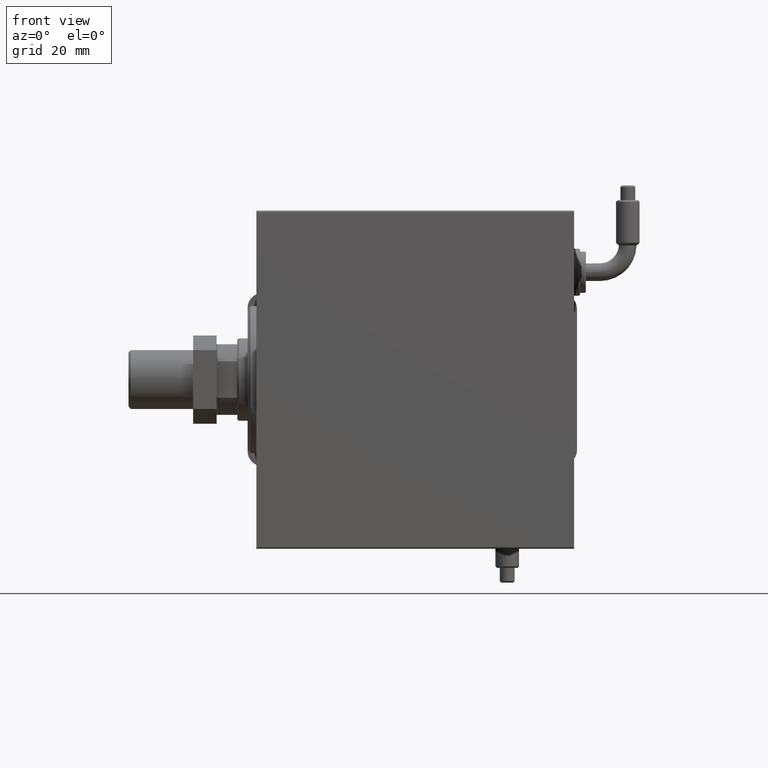
[diagram: clean part render]
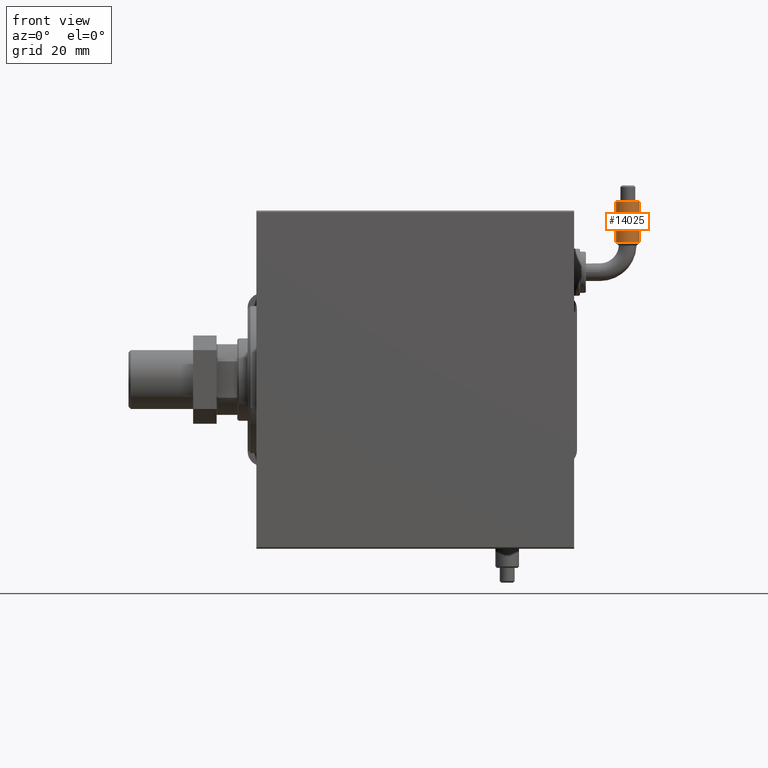
[diagram: same view with one face highlighted and labeled with its STEP entity id]
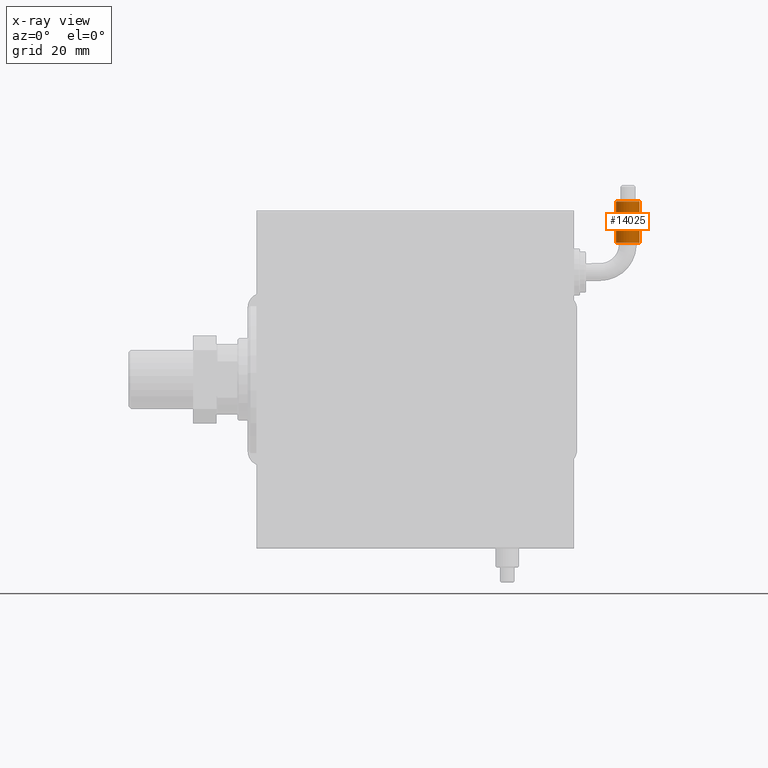
[diagram: x-ray of the same camera — body ghosted, the highlighted face saturated]
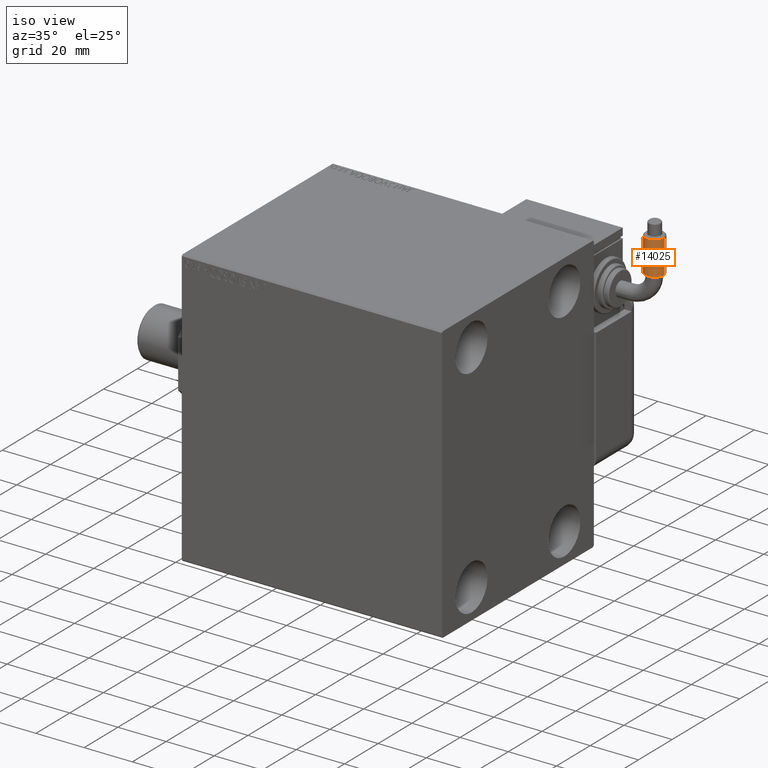
[diagram: same view with one face highlighted and labeled with its STEP entity id]
A machine part, front view. The second image highlights one B-rep face of the part: STEP entity #14025.
The next image is the same camera in x-ray: the body ghosted, the highlighted face saturated — about 0% of this face is hidden behind the body in this view.
A second angle (iso view) of the same face is appended — the face is thin or edge-on in the first view.
In plain terms, the highlighted cylindrical surface (edge-blend (fillet) strip) has radius 4 mm, axis along (0, -0, -1).
Its self-contained STEP definition (entity closure, byte-faithful):
#8382 = EDGE_CURVE ( 'NONE', #15874, #40453, #38609, .T. ) ;
#9464 = CARTESIAN_POINT ( 'NONE',  ( -44.25912096167365917, -24.00731150416889648, 0.000000000000000000 ) ) ;
#11297 = ORIENTED_EDGE ( 'NONE', *, *, #51097, .T. ) ;
#12978 = CARTESIAN_POINT ( 'NONE',  ( -40.25922459487507155, -10.00728189509763411, 0.000000000000000000 ) ) ;
#14025 = ADVANCED_FACE ( 'NONE', ( #51553 ), #50320, .T. ) ;
#15874 = VERTEX_POINT ( 'NONE', #26246 ) ;
#16733 = DIRECTION ( 'NONE',  ( 7.402363708109615079E-06, -0.9999999999726024713, -0.000000000000000000 ) ) ;
#17168 = CARTESIAN_POINT ( 'NONE',  ( -40.25911726060140694, -24.50728189470043006, 0.000000000000000000 ) ) ;
#18380 = ORIENTED_EDGE ( 'NONE', *, *, #8382, .T. ) ;
#18704 = AXIS2_PLACEMENT_3D ( 'NONE', #17168, #60338, #26867 ) ;
#18885 = LINE ( 'NONE', #38902, #42191 ) ;
#20591 = AXIS2_PLACEMENT_3D ( 'NONE', #12978, #16733, #31441 ) ;
#22327 = CARTESIAN_POINT ( 'NONE',  ( -36.25912096189284739, -24.00725228525934440, 4.898587196589407898E-16 ) ) ;
#22824 = DIRECTION ( 'NONE',  ( 0.9999999999726025823, 7.402363694231097129E-06, 0.000000000000000000 ) ) ;
#23212 = EDGE_LOOP ( 'NONE', ( #51370, #11297, #18380, #35504 ) ) ;
#23463 = EDGE_CURVE ( 'NONE', #28575, #42903, #53350, .T. ) ;
#26246 = CARTESIAN_POINT ( 'NONE',  ( -36.25922459498466566, -10.00725228564280300, 4.898587196589407898E-16 ) ) ;
#26867 = DIRECTION ( 'NONE',  ( -0.9999999999726025823, -7.402363701169991033E-06, 0.000000000000000000 ) ) ;
#28575 = VERTEX_POINT ( 'NONE', #9464 ) ;
#31441 = DIRECTION ( 'NONE',  ( 0.9999999999726025823, 7.402363708108884937E-06, 0.000000000000000000 ) ) ;
#33309 = EDGE_CURVE ( 'NONE', #28575, #40453, #34593, .T. ) ;
#34593 = LINE ( 'NONE', #43975, #56607 ) ;
#34911 = DIRECTION ( 'NONE',  ( -7.402363701086711600E-06, 0.9999999999726024713, -0.000000000000000000 ) ) ;
#35504 = ORIENTED_EDGE ( 'NONE', *, *, #33309, .F. ) ;
#37525 = DIRECTION ( 'NONE',  ( -7.402363694230904005E-06, 0.9999999999726025823, 0.000000000000000000 ) ) ;
#38609 = CIRCLE ( 'NONE', #20591, 3.999999999999993339 ) ;
#38902 = CARTESIAN_POINT ( 'NONE',  ( -36.25911726071100105, -24.50725228524562738, 4.898587196589407898E-16 ) ) ;
#39390 = AXIS2_PLACEMENT_3D ( 'NONE', #41603, #37525, #22824 ) ;
#40453 = VERTEX_POINT ( 'NONE', #50043 ) ;
#41603 = CARTESIAN_POINT ( 'NONE',  ( -40.25912096178325328, -24.00728189471412222, 0.000000000000000000 ) ) ;
#42191 = VECTOR ( 'NONE', #57354, 1000.000000000000114 ) ;
#42903 = VERTEX_POINT ( 'NONE', #22327 ) ;
#43975 = CARTESIAN_POINT ( 'NONE',  ( -44.25911726049180572, -24.50731150415523629, 0.000000000000000000 ) ) ;
#50043 = CARTESIAN_POINT ( 'NONE',  ( -44.25922459476547033, -10.00731150455246699, 0.000000000000000000 ) ) ;
#50320 = CYLINDRICAL_SURFACE ( 'NONE', #18704, 3.999999999999993339 ) ;
#51097 = EDGE_CURVE ( 'NONE', #42903, #15874, #18885, .T. ) ;
#51370 = ORIENTED_EDGE ( 'NONE', *, *, #23463, .T. ) ;
#51553 = FACE_OUTER_BOUND ( 'NONE', #23212, .T. ) ;
#53350 = CIRCLE ( 'NONE', #39390, 3.999999999999993339 ) ;
#56607 = VECTOR ( 'NONE', #34911, 1000.000000000000114 ) ;
#57354 = DIRECTION ( 'NONE',  ( -7.402363701086711600E-06, 0.9999999999726024713, -0.000000000000000000 ) ) ;
#60338 = DIRECTION ( 'NONE',  ( -7.402363701086712447E-06, 0.9999999999726025823, -0.000000000000000000 ) ) ;